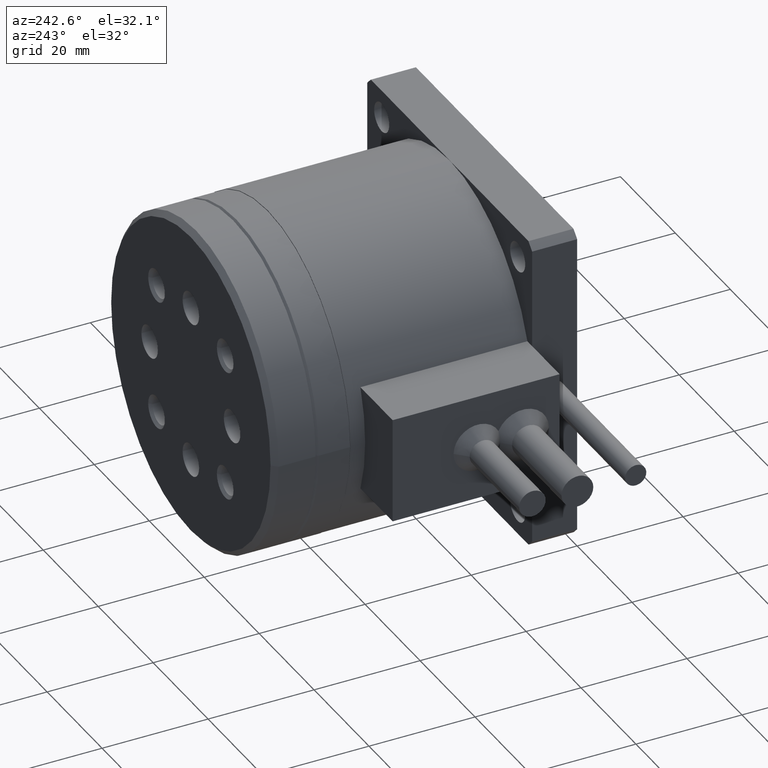
[diagram: clean part render]
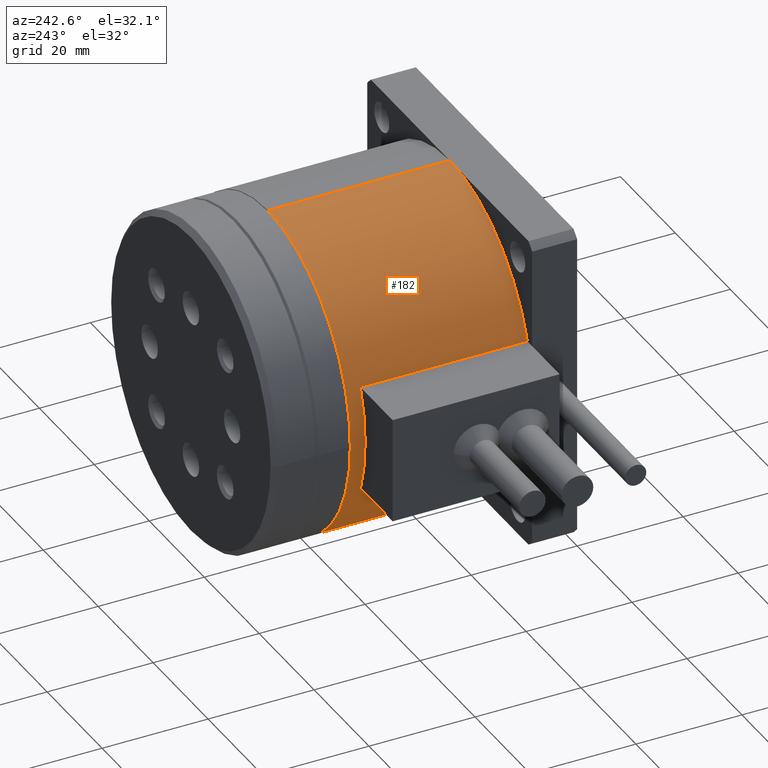
[diagram: same view with one face highlighted and labeled with its STEP entity id]
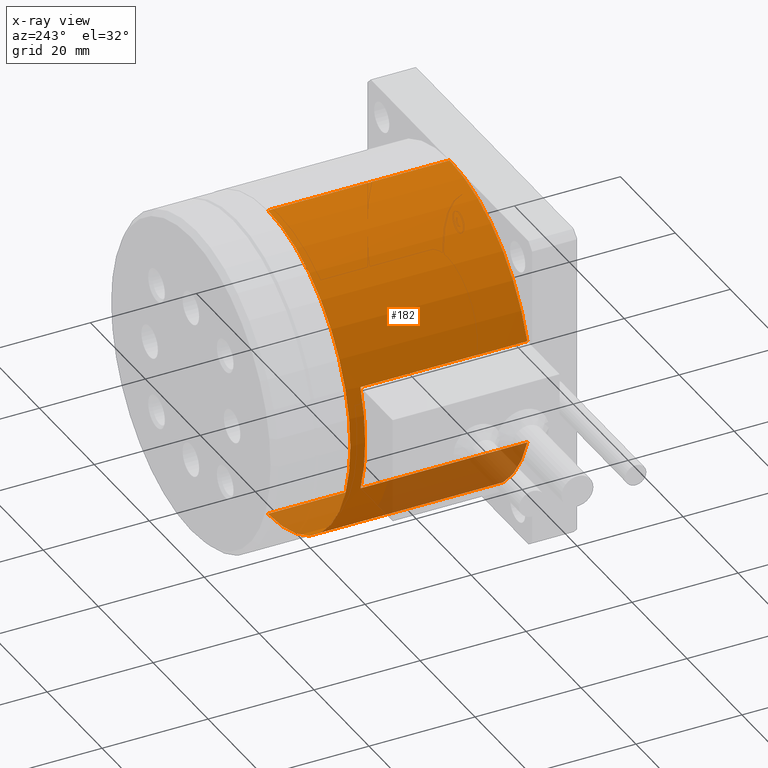
[diagram: x-ray of the same camera — body ghosted, the highlighted face saturated]
A machine part, auxiliary view. The second image highlights one B-rep face of the part: STEP entity #182.
The next image is the same camera in x-ray: the body ghosted, the highlighted face saturated — about 14% of this face is hidden behind the body in this view.
In plain terms, the highlighted cylindrical surface (partial cylindrical patch) has radius 30 mm, axis along (0, -1, -0).
Its self-contained STEP definition (entity closure, byte-faithful):
#179 = VERTEX_POINT ( 'NONE', #7736 ) ;
#182 = ADVANCED_FACE ( 'NONE', ( #1373 ), #7377, .T. ) ;
#297 = CARTESIAN_POINT ( 'NONE',  ( 1.715728752538097500, 42.80000000000000400, 40.00000000000000700 ) ) ;
#441 = EDGE_CURVE ( 'NONE', #8766, #3752, #7364, .T. ) ;
#487 = CARTESIAN_POINT ( 'NONE',  ( 30.00000000000000000, 40.00000000000000700, 30.00000000000001100 ) ) ;
#627 = VECTOR ( 'NONE', #2482, 1000.000000000000000 ) ;
#680 = EDGE_CURVE ( 'NONE', #4152, #8766, #794, .T. ) ;
#761 = EDGE_CURVE ( 'NONE', #3752, #3088, #4523, .T. ) ;
#794 = LINE ( 'NONE', #6384, #7575 ) ;
#1004 = AXIS2_PLACEMENT_3D ( 'NONE', #3107, #2480, #4692 ) ;
#1012 = EDGE_CURVE ( 'NONE', #6766, #4152, #4502, .T. ) ;
#1223 = VECTOR ( 'NONE', #8589, 1000.000000000000000 ) ;
#1270 = EDGE_CURVE ( 'NONE', #179, #4494, #3365, .T. ) ;
#1294 = DIRECTION ( 'NONE',  ( -1.550910762415538600E-016, 1.000000000000000000, 1.273579337255762800E-032 ) ) ;
#1328 = DIRECTION ( 'NONE',  ( 1.040834085586084100E-015, 0.0000000000000000000, 1.000000000000000000 ) ) ;
#1373 = FACE_OUTER_BOUND ( 'NONE', #6512, .T. ) ;
#1671 = CARTESIAN_POINT ( 'NONE',  ( 1.715728752538101100, 8.500000000000003600, 20.00000000000001800 ) ) ;
#2314 = CIRCLE ( 'NONE', #6220, 30.00000000000000400 ) ;
#2480 = DIRECTION ( 'NONE',  ( -1.550910762415538600E-016, 1.000000000000000000, 1.273579337255762800E-032 ) ) ;
#2482 = DIRECTION ( 'NONE',  ( 1.550910762415538600E-016, -1.000000000000000000, -1.273579337255762800E-032 ) ) ;
#3088 = VERTEX_POINT ( 'NONE', #8745 ) ;
#3107 = CARTESIAN_POINT ( 'NONE',  ( 30.00000000000000400, 8.500000000000007100, 30.00000000000001100 ) ) ;
#3115 = ORIENTED_EDGE ( 'NONE', *, *, #3504, .F. ) ;
#3133 = DIRECTION ( 'NONE',  ( 1.156482317317871200E-016, 0.0000000000000000000, 1.000000000000000000 ) ) ;
#3234 = CARTESIAN_POINT ( 'NONE',  ( 1.715728752538101100, 40.00000000000000700, 40.00000000000000700 ) ) ;
#3365 = CIRCLE ( 'NONE', #6723, 30.00000000000000400 ) ;
#3391 = VERTEX_POINT ( 'NONE', #3234 ) ;
#3431 = DIRECTION ( 'NONE',  ( 1.550910762415538600E-016, -1.000000000000000000, -1.273579337255762800E-032 ) ) ;
#3481 = DIRECTION ( 'NONE',  ( 1.550910762415538600E-016, -1.000000000000000000, -1.273579337255762800E-032 ) ) ;
#3504 = EDGE_CURVE ( 'NONE', #6766, #4494, #4852, .T. ) ;
#3752 = VERTEX_POINT ( 'NONE', #1671 ) ;
#3984 = AXIS2_PLACEMENT_3D ( 'NONE', #6750, #6813, #3133 ) ;
#4006 = ORIENTED_EDGE ( 'NONE', *, *, #8723, .T. ) ;
#4104 = DIRECTION ( 'NONE',  ( 1.156482317317871200E-016, 0.0000000000000000000, 1.000000000000000000 ) ) ;
#4152 = VERTEX_POINT ( 'NONE', #5736 ) ;
#4233 = EDGE_CURVE ( 'NONE', #3391, #179, #5283, .T. ) ;
#4353 = ORIENTED_EDGE ( 'NONE', *, *, #1012, .T. ) ;
#4400 = CARTESIAN_POINT ( 'NONE',  ( 30.00000000000000000, 42.80000000000000400, 60.00000000000001400 ) ) ;
#4494 = VERTEX_POINT ( 'NONE', #7763 ) ;
#4502 = CIRCLE ( 'NONE', #3984, 30.00000000000000400 ) ;
#4523 = LINE ( 'NONE', #9404, #5104 ) ;
#4692 = DIRECTION ( 'NONE',  ( 1.156482317317871200E-016, 0.0000000000000000000, 1.000000000000000000 ) ) ;
#4852 = LINE ( 'NONE', #7850, #1223 ) ;
#4951 = ORIENTED_EDGE ( 'NONE', *, *, #441, .T. ) ;
#5104 = VECTOR ( 'NONE', #7979, 1000.000000000000000 ) ;
#5283 = LINE ( 'NONE', #297, #627 ) ;
#5480 = CARTESIAN_POINT ( 'NONE',  ( 30.00000000000000000, 8.500000000000007100, 6.938893903907228400E-015 ) ) ;
#5576 = DIRECTION ( 'NONE',  ( -1.550910762415538600E-016, 1.000000000000000000, 1.273579337255762800E-032 ) ) ;
#5736 = CARTESIAN_POINT ( 'NONE',  ( 29.99999999999999300, 42.80000000000000400, 1.040834085586084300E-014 ) ) ;
#6220 = AXIS2_PLACEMENT_3D ( 'NONE', #487, #5576, #4104 ) ;
#6384 = CARTESIAN_POINT ( 'NONE',  ( 29.99999999999998900, 42.80000000000000400, 1.040834085586084300E-014 ) ) ;
#6391 = ORIENTED_EDGE ( 'NONE', *, *, #4233, .T. ) ;
#6512 = EDGE_LOOP ( 'NONE', ( #4353, #7312, #4951, #6920, #4006, #6391, #9196, #3115 ) ) ;
#6723 = AXIS2_PLACEMENT_3D ( 'NONE', #7787, #1294, #1328 ) ;
#6750 = CARTESIAN_POINT ( 'NONE',  ( 29.99999999999999600, 42.80000000000000400, 30.00000000000001100 ) ) ;
#6766 = VERTEX_POINT ( 'NONE', #4400 ) ;
#6813 = DIRECTION ( 'NONE',  ( 1.550910762415538600E-016, -1.000000000000000000, -1.273579337255762800E-032 ) ) ;
#6920 = ORIENTED_EDGE ( 'NONE', *, *, #761, .T. ) ;
#7070 = AXIS2_PLACEMENT_3D ( 'NONE', #7831, #3431, #8501 ) ;
#7312 = ORIENTED_EDGE ( 'NONE', *, *, #680, .T. ) ;
#7364 = CIRCLE ( 'NONE', #1004, 30.00000000000000400 ) ;
#7377 = CYLINDRICAL_SURFACE ( 'NONE', #7070, 30.00000000000000400 ) ;
#7575 = VECTOR ( 'NONE', #3481, 1000.000000000000000 ) ;
#7736 = CARTESIAN_POINT ( 'NONE',  ( 1.715728752538104400, 8.500000000000003600, 40.00000000000000700 ) ) ;
#7763 = CARTESIAN_POINT ( 'NONE',  ( 30.00000000000000400, 8.500000000000007100, 60.00000000000001400 ) ) ;
#7787 = CARTESIAN_POINT ( 'NONE',  ( 30.00000000000000400, 8.500000000000007100, 30.00000000000001100 ) ) ;
#7831 = CARTESIAN_POINT ( 'NONE',  ( 29.99999999999999600, 42.80000000000000400, 30.00000000000001100 ) ) ;
#7850 = CARTESIAN_POINT ( 'NONE',  ( 30.00000000000000000, 42.80000000000000400, 60.00000000000001400 ) ) ;
#7979 = DIRECTION ( 'NONE',  ( -1.550910762415538600E-016, 1.000000000000000000, 1.273579337255762800E-032 ) ) ;
#8501 = DIRECTION ( 'NONE',  ( 1.156482317317871200E-016, 0.0000000000000000000, 1.000000000000000000 ) ) ;
#8589 = DIRECTION ( 'NONE',  ( 1.550910762415538600E-016, -1.000000000000000000, -1.273579337255762800E-032 ) ) ;
#8723 = EDGE_CURVE ( 'NONE', #3088, #3391, #2314, .T. ) ;
#8745 = CARTESIAN_POINT ( 'NONE',  ( 1.715728752538097500, 40.00000000000000700, 20.00000000000001800 ) ) ;
#8766 = VERTEX_POINT ( 'NONE', #5480 ) ;
#9196 = ORIENTED_EDGE ( 'NONE', *, *, #1270, .T. ) ;
#9404 = CARTESIAN_POINT ( 'NONE',  ( 1.715728752538094000, 42.80000000000000400, 20.00000000000001800 ) ) ;